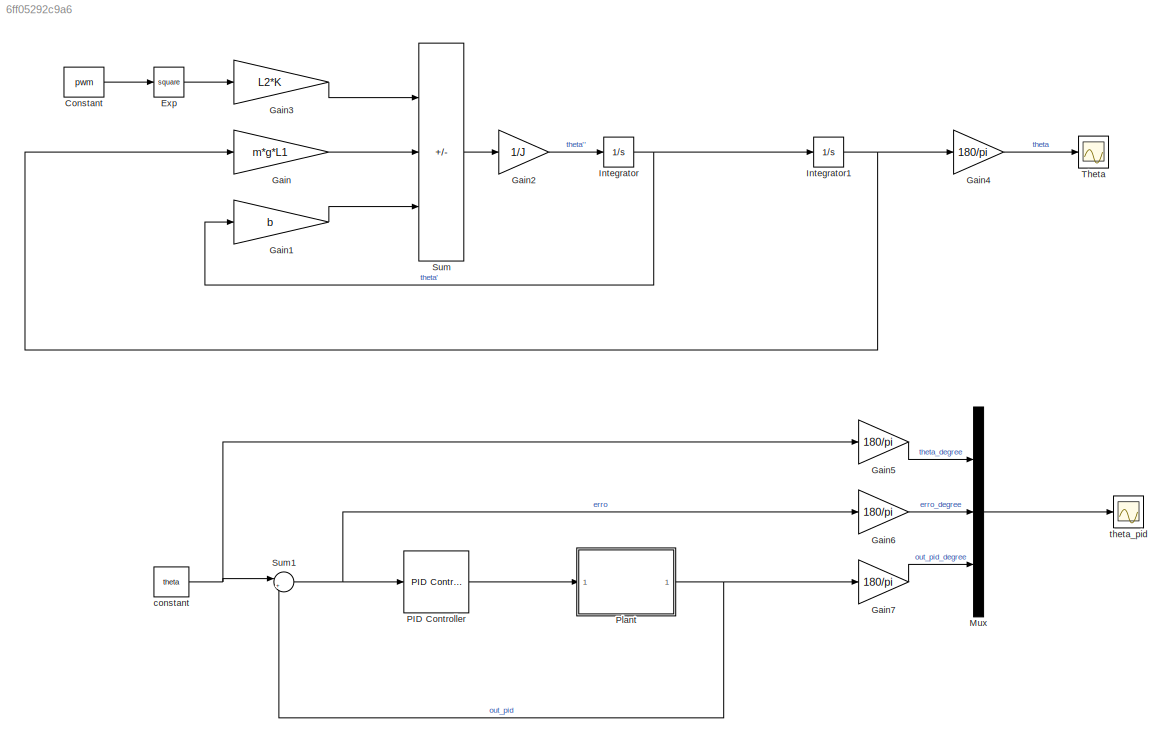
MODEL slx_6ff05292c9a6
KIND model
CONFIG AbsTol = auto
CONFIG EnableMultiTasking = off
CONFIG FixedStep = auto
CONFIG MaxStep = auto
CONFIG MinStep = auto
CONFIG RelTol = 1e-3
CONFIG SampleTimeConstraint = Unconstrained
CONFIG SolverName = VariableStepAuto
CONFIG StartTime = 0.0
CONFIG StopTime = 20.0
BLOCK [Constant] Constant
  Value = pwm
BLOCK [Math] Exp
  Operator = square
BLOCK [Gain] Gain
  Gain = m*g*L1
  NameLocation = top
BLOCK [Gain] Gain1
  Gain = b
  NameLocation = top
BLOCK [Gain] Gain2
  Gain = 1/J
  NameLocation = top
BLOCK [Gain] Gain3
  Gain = L2*K
  NameLocation = top
BLOCK [Gain] Gain4
  Gain = 180/pi
  NameLocation = top
BLOCK [Gain] Gain5
  Gain = 180/pi
  NameLocation = top
BLOCK [Gain] Gain6
  Gain = 180/pi
  NameLocation = top
BLOCK [Gain] Gain7
  Gain = 180/pi
  NameLocation = top
BLOCK [Integrator] Integrator
BLOCK [Integrator] Integrator1
BLOCK [Mux] Mux
  DisplayOption = bar
  Inputs = 3
BLOCK [Reference] PID Controller  REF=slpidlib/PID Controller
  LibrarySourceBlock = simulink/Continuous/PID Controller
  SourceBlock = slpidlib/PID Controller
  SourceType = PID 1dof
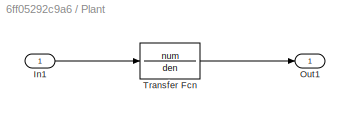
BLOCK [SubSystem] Plant
BLOCK [Inport] Plant/In1
BLOCK [Outport] Plant/Out1
BLOCK [TransferFcn] Plant/Transfer Fcn
  Denominator = den
  Numerator = num
BLOCK [Sum] Sum
  IconShape = rectangular
  Inputs = +--
BLOCK [Sum] Sum1
  Inputs = |+-
BLOCK [Scope] Theta
  ActiveDisplayYMaximum = 183.06246083453388
  ActiveDisplayYMinimum = -20.340273426059316
  Floating = off
  GraphicalSettings = {"Style":{"BackgroundColor":[0.12941176470588237,0.12941176470588237,0.12941176470588237],"AxesColor":[0.07058823529411765,0.07058823529411765,0.07058823529411765],"LabelsColor":[0.8509803921568627,0.8509803921568627,0.8509803921568627],"PreserveColors":false,"Visible":[true],"LineStyle":["-"],"LineWidth":[1.5],"BarWidth":[0.9],"LineColor":["auto"],"LineFaceAlpha":[1],"LineEdgeAlpha":[1],"Marker":...<+1993ch>
  MultipleDisplayCache = [{"MaxYLimMag":183.06246083453388,"MaxYLimReal":183.06246083453388,"MinYLimMag":0,"MinYLimReal":-20.340273426059316,"PlotAsMagnitudePhase":false,"ShowGrid":true,"ShowLegend":true,"Title":"%<SignalLabel>","YLabel":""}]
  NumInputPorts = 1
  ScopeFrameLocation = window
  ShowLegend = on
  WasSavedAsWebScope = on
  WindowPosition = [2645.000000,444.000000,758.000000,550.000000,]
BLOCK [Constant] constant
  Value = theta
BLOCK [Scope] theta_pid
  ActiveDisplayYMaximum = 103.88092611668888
  ActiveDisplayYMinimum = -13.880926116688881
  DataLoggingVariableName = ScopeData1
  Floating = off
  GraphicalSettings = {"Style":{"BackgroundColor":[0.12941176470588237,0.12941176470588237,0.12941176470588237],"AxesColor":[0.07058823529411765,0.07058823529411765,0.07058823529411765],"LabelsColor":[0.8509803921568627,0.8509803921568627,0.8509803921568627],"PreserveColors":false,"Visible":[true,true,true],"LineStyle":["-","-","-"],"LineWidth":[1.5,1.5,1.5],"BarWidth":[0.9,0.9,0.9],"LineColor":["auto","auto","auto"],"...<+2258ch>
  MultipleDisplayCache = [{"MaxYLimMag":103.88092611668888,"MaxYLimReal":103.88092611668888,"MinYLimMag":0,"MinYLimReal":-13.880926116688881,"PlotAsMagnitudePhase":false,"ShowGrid":true,"ShowLegend":true,"Title":"%<SignalLabel>","YLabel":""}]
  NumInputPorts = 1
  ScopeFrameLocation = window
  ShowLegend = on
  Visible = on
  WasSavedAsWebScope = on
  WindowPosition = [240.000000,206.000000,1440.000000,743.000000,]
LINE Constant:1 -> Exp:1
LINE Exp:1 -> Gain3:1
LINE Gain1:1 -> Sum:3
LINE Gain2:1 -> Integrator:1
LINE Gain3:1 -> Sum:1
LINE Gain4:1 -> Theta:1
LINE Gain5:1 -> Mux:1
LINE Gain6:1 -> Mux:2
LINE Gain7:1 -> Mux:3
LINE Gain:1 -> Sum:2
NET Integrator1:1 -> Gain4:1, Gain:1
NET Integrator:1 -> Gain1:1, Integrator1:1
LINE Mux:1 -> theta_pid:1
LINE PID Controller:1 -> Plant:1
LINE Plant/In1:1 -> Plant/Transfer Fcn:1
LINE Plant/Transfer Fcn:1 -> Plant/Out1:1
NET Plant:1 -> Gain7:1, Sum1:2
NET Sum1:1 -> Gain6:1, PID Controller:1
LINE Sum:1 -> Gain2:1
NET constant:1 -> Gain5:1, Sum1:1
note: NET lines group one-source signal fan-out (src -> all destinations, sorted); 1:1 wires keep LINE
